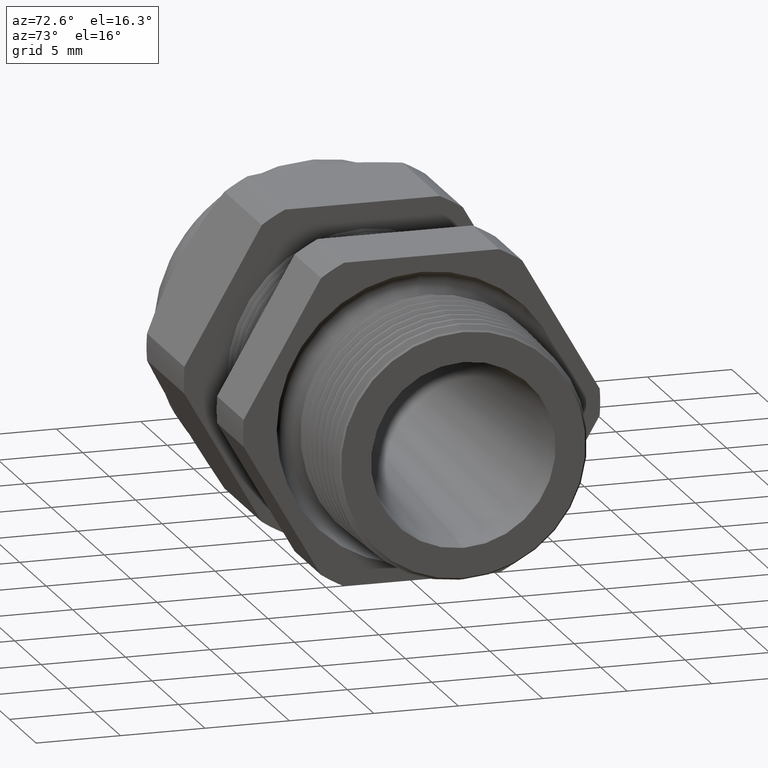
[diagram: clean part render]
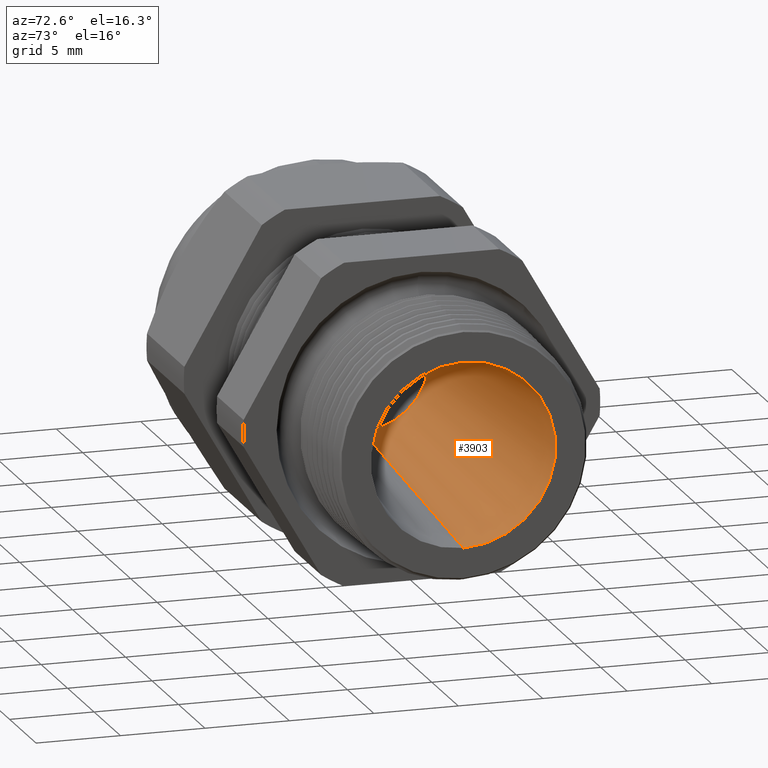
[diagram: same view with one face highlighted and labeled with its STEP entity id]
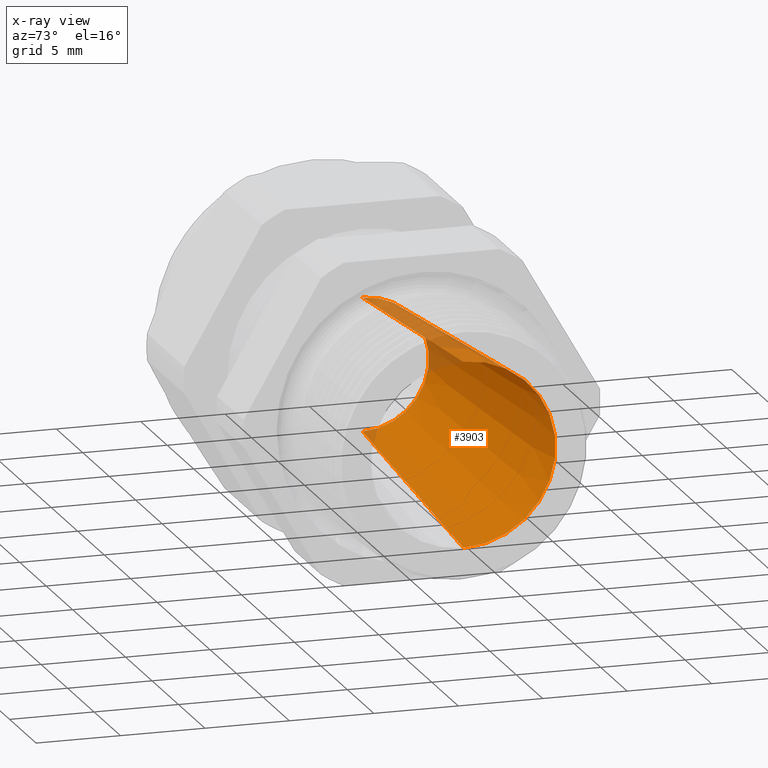
[diagram: x-ray of the same camera — body ghosted, the highlighted face saturated]
A machine part, auxiliary view. The second image highlights one B-rep face of the part: STEP entity #3903.
The next image is the same camera in x-ray: the body ghosted, the highlighted face saturated — about 8% of this face is hidden behind the body in this view.
In plain terms, the highlighted conical surface has half-angle 4.594 deg.
Its self-contained STEP definition (entity closure, byte-faithful):
#4 = EDGE_CURVE ( 'NONE', #461, #458, #1049, .T. ) ;
#397 = VERTEX_POINT ( 'NONE', #1677 ) ;
#450 = VERTEX_POINT ( 'NONE', #1792 ) ;
#457 = EDGE_CURVE ( 'NONE', #397, #458, #1785, .T. ) ;
#458 = VERTEX_POINT ( 'NONE', #1777 ) ;
#461 = VERTEX_POINT ( 'NONE', #1771 ) ;
#463 = EDGE_CURVE ( 'NONE', #450, #461, #1834, .T. ) ;
#1045 = DIRECTION ( 'NONE',  ( 0.0000000000000000000, 0.0000000000000000000, -1.000000000000000000 ) ) ;
#1046 = DIRECTION ( 'NONE',  ( 1.000000000000000000, 0.0000000000000000000, 0.0000000000000000000 ) ) ;
#1047 = CARTESIAN_POINT ( 'NONE',  ( 0.0000000000000000000, 0.0000000000000000000, 0.0000000000000000000 ) ) ;
#1048 = AXIS2_PLACEMENT_3D ( 'NONE', #1047, #1046, #1045 ) ;
#1049 = CIRCLE ( 'NONE', #1048, 0.2153378781036457400 ) ;
#1677 = CARTESIAN_POINT ( 'NONE',  ( -0.7508661417322833900, 2.267665485113262000E-017, 0.1550000000000000000 ) ) ;
#1771 = CARTESIAN_POINT ( 'NONE',  ( 0.0000000000000000000, 0.0000000000000000000, -0.2153378781036457400 ) ) ;
#1777 = CARTESIAN_POINT ( 'NONE',  ( 0.0000000000000000000, 2.637128431548127100E-017, 0.2153378781036457400 ) ) ;
#1778 = DIRECTION ( 'NONE',  ( 0.9967868727108976100, 9.809360004160878300E-018, 0.08009950306480641300 ) ) ;
#1779 = VECTOR ( 'NONE', #1778, 39.37007874015748900 ) ;
#1780 = CARTESIAN_POINT ( 'NONE',  ( -0.7508661417322833900, 1.898202538678397300E-017, 0.1550000000000000000 ) ) ;
#1785 = LINE ( 'NONE', #1780, #1779 ) ;
#1792 = CARTESIAN_POINT ( 'NONE',  ( -0.7508661417322833900, 0.0000000000000000000, -0.1550000000000000000 ) ) ;
#1831 = DIRECTION ( 'NONE',  ( 0.9967868727108976100, 0.0000000000000000000, -0.08009950306480641300 ) ) ;
#1832 = VECTOR ( 'NONE', #1831, 39.37007874015748900 ) ;
#1833 = CARTESIAN_POINT ( 'NONE',  ( -0.7508661417322833900, 0.0000000000000000000, -0.1550000000000000000 ) ) ;
#1834 = LINE ( 'NONE', #1833, #1832 ) ;
#3197 = DIRECTION ( 'NONE',  ( 0.0000000000000000000, 0.0000000000000000000, -1.000000000000000000 ) ) ;
#3198 = DIRECTION ( 'NONE',  ( 1.000000000000000000, 0.0000000000000000000, 0.0000000000000000000 ) ) ;
#3199 = CARTESIAN_POINT ( 'NONE',  ( -0.7508661417322833900, 0.0000000000000000000, 0.0000000000000000000 ) ) ;
#3200 = AXIS2_PLACEMENT_3D ( 'NONE', #3199, #3198, #3197 ) ;
#3201 = CIRCLE ( 'NONE', #3200, 0.1550000000000000000 ) ;
#3236 = DIRECTION ( 'NONE',  ( 0.0000000000000000000, 0.0000000000000000000, -1.000000000000000000 ) ) ;
#3237 = DIRECTION ( 'NONE',  ( 1.000000000000000000, 0.0000000000000000000, 0.0000000000000000000 ) ) ;
#3238 = CARTESIAN_POINT ( 'NONE',  ( -0.7508661417322833900, 0.0000000000000000000, 0.0000000000000000000 ) ) ;
#3239 = AXIS2_PLACEMENT_3D ( 'NONE', #3238, #3237, #3236 ) ;
#3241 = CONICAL_SURFACE ( 'NONE', #3239, 0.1550000000000000000, 0.08018540344487304300 ) ;
#3242 = FACE_OUTER_BOUND ( 'NONE', #3884, .T. ) ;
#3880 = ORIENTED_EDGE ( 'NONE', *, *, #463, .T. ) ;
#3884 = EDGE_LOOP ( 'NONE', ( #3885, #3891, #3880, #3889 ) ) ;
#3885 = ORIENTED_EDGE ( 'NONE', *, *, #457, .F. ) ;
#3889 = ORIENTED_EDGE ( 'NONE', *, *, #4, .T. ) ;
#3891 = ORIENTED_EDGE ( 'NONE', *, *, #3892, .F. ) ;
#3892 = EDGE_CURVE ( 'NONE', #450, #397, #3201, .T. ) ;
#3903 = ADVANCED_FACE ( 'NONE', ( #3242 ), #3241, .F. ) ;